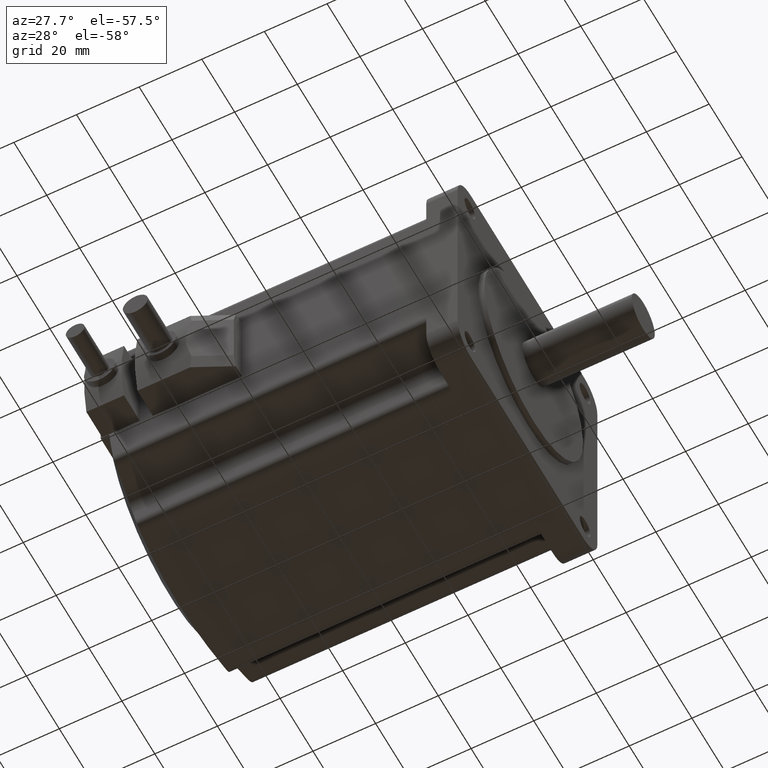
[diagram: clean part render]
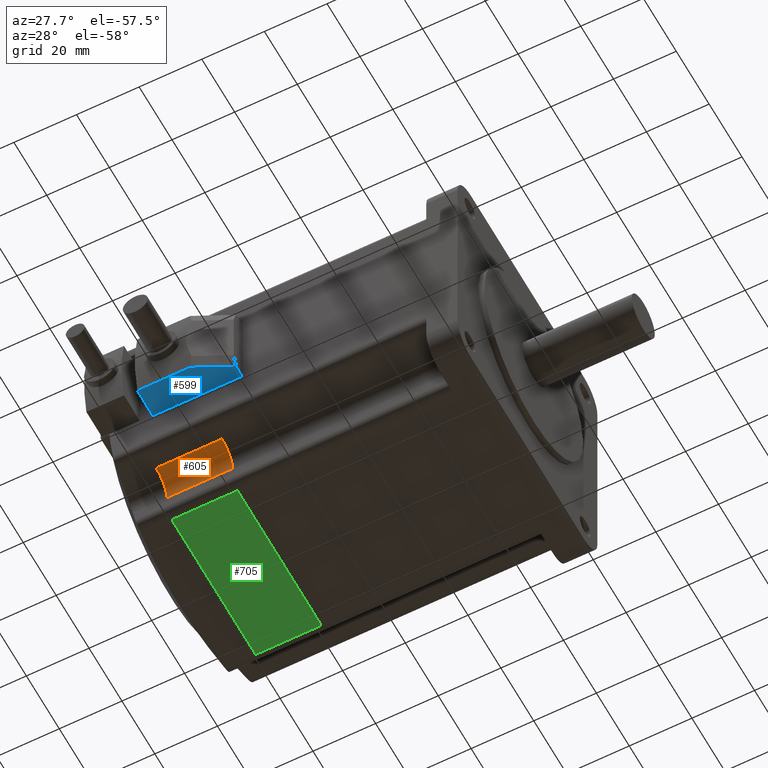
[diagram: same view with three faces highlighted in distinct colors, each labeled with its STEP entity id]
A machine part, auxiliary view with three faces highlighted in distinct colors.
Their STEP definitions:

[orange] entity #605 — the highlighted cylindrical surface (edge-blend (fillet) strip) has radius 6.5 mm, axis along (1, -0, -0).
#605 = ADVANCED_FACE( '', ( #1327 ), #1328, .F. );
#1327 = FACE_OUTER_BOUND( '', #2155, .T. );
#1328 = CYLINDRICAL_SURFACE( '', #2156, 6.50000000000000 );
#2155 = EDGE_LOOP( '', ( #3906, #3907, #3908, #3909 ) );
#2156 = AXIS2_PLACEMENT_3D( '', #3910, #3911, #3912 );
#3906 = ORIENTED_EDGE( '', *, *, #5651, .F. );
#3907 = ORIENTED_EDGE( '', *, *, #5402, .F. );
#3908 = ORIENTED_EDGE( '', *, *, #5652, .T. );
#3909 = ORIENTED_EDGE( '', *, *, #5182, .T. );
#3910 = CARTESIAN_POINT( '', ( -9.99999999999999, -35.0000000000000, -35.0000000000000 ) );
#3911 = DIRECTION( '', ( 1.00000000000000, -0.000000000000000, -0.000000000000000 ) );
#3912 = DIRECTION( '', ( 0.000000000000000, 0.000000000000000, 1.00000000000000 ) );
#5182 = EDGE_CURVE( '', #6339, #6337, #6340, .T. );
#5402 = EDGE_CURVE( '', #6696, #6697, #6698, .T. );
#5651 = EDGE_CURVE( '', #6697, #6337, #7043, .T. );
#5652 = EDGE_CURVE( '', #6696, #6339, #7044, .T. );
#6337 = VERTEX_POINT( '', #7978 );
#6339 = VERTEX_POINT( '', #7981 );
#6340 = LINE( '', #7982, #7983 );
#6696 = VERTEX_POINT( '', #8544 );
#6697 = VERTEX_POINT( '', #8545 );
#6698 = LINE( '', #8546, #8547 );
#7043 = CIRCLE( '', #9182, 6.50000000000000 );
#7044 = CIRCLE( '', #9183, 6.50000000000000 );
#7978 = CARTESIAN_POINT( '', ( -100.190000000000, -35.0000000000000, -28.5000000000000 ) );
#7981 = CARTESIAN_POINT( '', ( -79.2000000000000, -35.0000000000000, -28.5000000000000 ) );
#7982 = CARTESIAN_POINT( '', ( -9.99999999999999, -35.0000000000000, -28.5000000000000 ) );
#7983 = VECTOR( '', #9986, 1000.00000000000 );
#8544 = CARTESIAN_POINT( '', ( -79.2000000000000, -28.5000000000000, -35.0000000000000 ) );
#8545 = CARTESIAN_POINT( '', ( -100.190000000000, -28.5000000000000, -35.0000000000000 ) );
#8546 = CARTESIAN_POINT( '', ( -9.99999999999999, -28.5000000000000, -35.0000000000000 ) );
#8547 = VECTOR( '', #10266, 1000.00000000000 );
#9182 = AXIS2_PLACEMENT_3D( '', #10541, #10542, #10543 );
#9183 = AXIS2_PLACEMENT_3D( '', #10544, #10545, #10546 );
#9986 = DIRECTION( '', ( -1.00000000000000, -0.000000000000000, -0.000000000000000 ) );
#10266 = DIRECTION( '', ( -1.00000000000000, -0.000000000000000, -0.000000000000000 ) );
#10541 = CARTESIAN_POINT( '', ( -100.190000000000, -35.0000000000000, -35.0000000000000 ) );
#10542 = DIRECTION( '', ( 1.00000000000000, 0.000000000000000, 0.000000000000000 ) );
#10543 = DIRECTION( '', ( 0.000000000000000, 0.000000000000000, -1.00000000000000 ) );
#10544 = CARTESIAN_POINT( '', ( -79.2000000000000, -35.0000000000000, -35.0000000000000 ) );
#10545 = DIRECTION( '', ( 1.00000000000000, 0.000000000000000, 0.000000000000000 ) );
#10546 = DIRECTION( '', ( 0.000000000000000, 0.000000000000000, -1.00000000000000 ) );

[blue] entity #599 — the highlighted planar face has unit normal (-0, 0, 1).
#599 = ADVANCED_FACE( '', ( #1318 ), #1319, .F. );
#1318 = FACE_OUTER_BOUND( '', #2146, .T. );
#1319 = PLANE( '', #2147 );
#2146 = EDGE_LOOP( '', ( #3879, #3880, #3881, #3882, #3883, #3884, #3885 ) );
#2147 = AXIS2_PLACEMENT_3D( '', #3886, #3887, #3888 );
#3879 = ORIENTED_EDGE( '', *, *, #5512, .F. );
#3880 = ORIENTED_EDGE( '', *, *, #5641, .T. );
#3881 = ORIENTED_EDGE( '', *, *, #5642, .F. );
#3882 = ORIENTED_EDGE( '', *, *, #5643, .F. );
#3883 = ORIENTED_EDGE( '', *, *, #4932, .F. );
#3884 = ORIENTED_EDGE( '', *, *, #5644, .F. );
#3885 = ORIENTED_EDGE( '', *, *, #5645, .F. );
#3886 = CARTESIAN_POINT( '', ( -0.000000000000000, 0.000000000000000, -13.5000000000000 ) );
#3887 = DIRECTION( '', ( -0.000000000000000, 0.000000000000000, 1.00000000000000 ) );
#3888 = DIRECTION( '', ( 1.00000000000000, 0.000000000000000, 0.000000000000000 ) );
#4932 = EDGE_CURVE( '', #5901, #5903, #5904, .T. );
#5512 = EDGE_CURVE( '', #6855, #6853, #6857, .T. );
#5641 = EDGE_CURVE( '', #6855, #7029, #7030, .T. );
#5642 = EDGE_CURVE( '', #7031, #7029, #7032, .T. );
#5643 = EDGE_CURVE( '', #5903, #7031, #7033, .T. );
#5644 = EDGE_CURVE( '', #7034, #5901, #7035, .T. );
#5645 = EDGE_CURVE( '', #6853, #7034, #7036, .T. );
#5901 = VERTEX_POINT( '', #7343 );
#5903 = VERTEX_POINT( '', #7346 );
#5904 = LINE( '', #7347, #7348 );
#6853 = VERTEX_POINT( '', #8806 );
#6855 = VERTEX_POINT( '', #8808 );
#6857 = LINE( '', #8813, #8814 );
#7029 = VERTEX_POINT( '', #9162 );
#7030 = LINE( '', #9163, #9164 );
#7031 = VERTEX_POINT( '', #9165 );
#7032 = LINE( '', #9166, #9167 );
#7033 = LINE( '', #9168, #9169 );
#7034 = VERTEX_POINT( '', #9170 );
#7035 = LINE( '', #9171, #9172 );
#7036 = LINE( '', #9173, #9174 );
#7343 = CARTESIAN_POINT( '', ( -79.1900000000000, -42.5000000000000, -13.5000000000000 ) );
#7346 = CARTESIAN_POINT( '', ( -79.2000000000000, -42.5000000000000, -13.5000000000000 ) );
#7347 = CARTESIAN_POINT( '', ( -114.000000000000, -42.5000000000000, -13.5000000000000 ) );
#7348 = VECTOR( '', #9647, 1000.00000000000 );
#8806 = CARTESIAN_POINT( '', ( -68.8000000000000, -46.3193003062901, -13.5000000000000 ) );
#8808 = CARTESIAN_POINT( '', ( -80.3682766247292, -51.9615258097152, -13.5000000000000 ) );
#8813 = CARTESIAN_POINT( '', ( -81.7653890287241, -52.6429430590331, -13.5000000000000 ) );
#8814 = VECTOR( '', #10379, 1000.00000000000 );
#9162 = CARTESIAN_POINT( '', ( -97.3000000000000, -51.9615258097152, -13.5000000000000 ) );
#9163 = CARTESIAN_POINT( '', ( -67.0000000000000, -51.9615258097152, -13.5000000000000 ) );
#9164 = VECTOR( '', #10532, 1000.00000000000 );
#9165 = CARTESIAN_POINT( '', ( -97.3000000000000, -42.5000000000000, -13.5000000000000 ) );
#9166 = CARTESIAN_POINT( '', ( -97.3000000000000, -37.5000000000000, -13.5000000000000 ) );
#9167 = VECTOR( '', #10533, 1000.00000000000 );
#9168 = CARTESIAN_POINT( '', ( -114.000000000000, -42.5000000000000, -13.5000000000000 ) );
#9169 = VECTOR( '', #10534, 1000.00000000000 );
#9170 = CARTESIAN_POINT( '', ( -68.8000000000000, -42.5000000000000, -13.5000000000000 ) );
#9171 = CARTESIAN_POINT( '', ( -114.000000000000, -42.5000000000000, -13.5000000000000 ) );
#9172 = VECTOR( '', #10535, 1000.00000000000 );
#9173 = CARTESIAN_POINT( '', ( -68.8000000000000, -47.5000000000000, -13.5000000000000 ) );
#9174 = VECTOR( '', #10536, 1000.00000000000 );
#9647 = DIRECTION( '', ( -1.00000000000000, 0.000000000000000, 0.000000000000000 ) );
#10379 = DIRECTION( '', ( 0.898794046299167, 0.438371146789077, 0.000000000000000 ) );
#10532 = DIRECTION( '', ( -1.00000000000000, -0.000000000000000, -0.000000000000000 ) );
#10533 = DIRECTION( '', ( 0.000000000000000, -1.00000000000000, 0.000000000000000 ) );
#10534 = DIRECTION( '', ( -1.00000000000000, 0.000000000000000, 0.000000000000000 ) );
#10535 = DIRECTION( '', ( -1.00000000000000, 0.000000000000000, 0.000000000000000 ) );
#10536 = DIRECTION( '', ( 0.000000000000000, 1.00000000000000, 0.000000000000000 ) );

[green] entity #705 — the highlighted planar face has unit normal (0, 0, -1).
#705 = ADVANCED_FACE( '', ( #1484 ), #1485, .T. );
#1484 = FACE_OUTER_BOUND( '', #2312, .T. );
#1485 = PLANE( '', #2313 );
#2312 = EDGE_LOOP( '', ( #4367, #4368, #4369, #4370 ) );
#2313 = AXIS2_PLACEMENT_3D( '', #4371, #4372, #4373 );
#4367 = ORIENTED_EDGE( '', *, *, #5803, .F. );
#4368 = ORIENTED_EDGE( '', *, *, #5699, .F. );
#4369 = ORIENTED_EDGE( '', *, *, #5804, .T. );
#4370 = ORIENTED_EDGE( '', *, *, #5781, .T. );
#4371 = CARTESIAN_POINT( '', ( -114.000000000000, -34.3000000000000, -42.5000000000000 ) );
#4372 = DIRECTION( '', ( 0.000000000000000, 0.000000000000000, -1.00000000000000 ) );
#4373 = DIRECTION( '', ( -1.00000000000000, 0.000000000000000, 0.000000000000000 ) );
#5699 = EDGE_CURVE( '', #7105, #7106, #7107, .T. );
#5781 = EDGE_CURVE( '', #7208, #7206, #7209, .T. );
#5803 = EDGE_CURVE( '', #7106, #7206, #7235, .T. );
#5804 = EDGE_CURVE( '', #7105, #7208, #7236, .T. );
#7105 = VERTEX_POINT( '', #9268 );
#7106 = VERTEX_POINT( '', #9269 );
#7107 = LINE( '', #9270, #9271 );
#7206 = VERTEX_POINT( '', #9411 );
#7208 = VERTEX_POINT( '', #9413 );
#7209 = LINE( '', #9414, #9415 );
#7235 = LINE( '', #9450, #9451 );
#7236 = LINE( '', #9452, #9453 );
#9268 = CARTESIAN_POINT( '', ( -79.2000000000000, 25.5000000000000, -42.5000000000000 ) );
#9269 = CARTESIAN_POINT( '', ( -100.190000000000, 25.5000000000000, -42.5000000000000 ) );
#9270 = CARTESIAN_POINT( '', ( -9.99999999999999, 25.5000000000000, -42.5000000000000 ) );
#9271 = VECTOR( '', #10586, 1000.00000000000 );
#9411 = CARTESIAN_POINT( '', ( -100.190000000000, -25.5000000000000, -42.5000000000000 ) );
#9413 = CARTESIAN_POINT( '', ( -79.2000000000000, -25.5000000000000, -42.5000000000000 ) );
#9414 = CARTESIAN_POINT( '', ( -9.99999999999999, -25.5000000000000, -42.5000000000000 ) );
#9415 = VECTOR( '', #10683, 1000.00000000000 );
#9450 = CARTESIAN_POINT( '', ( -100.190000000000, -34.3000000000000, -42.5000000000000 ) );
#9451 = VECTOR( '', #10714, 1000.00000000000 );
#9452 = CARTESIAN_POINT( '', ( -79.2000000000000, -34.3000000000000, -42.5000000000000 ) );
#9453 = VECTOR( '', #10715, 1000.00000000000 );
#10586 = DIRECTION( '', ( -1.00000000000000, -0.000000000000000, -0.000000000000000 ) );
#10683 = DIRECTION( '', ( -1.00000000000000, -0.000000000000000, -0.000000000000000 ) );
#10714 = DIRECTION( '', ( 0.000000000000000, -1.00000000000000, 0.000000000000000 ) );
#10715 = DIRECTION( '', ( 0.000000000000000, -1.00000000000000, 0.000000000000000 ) );